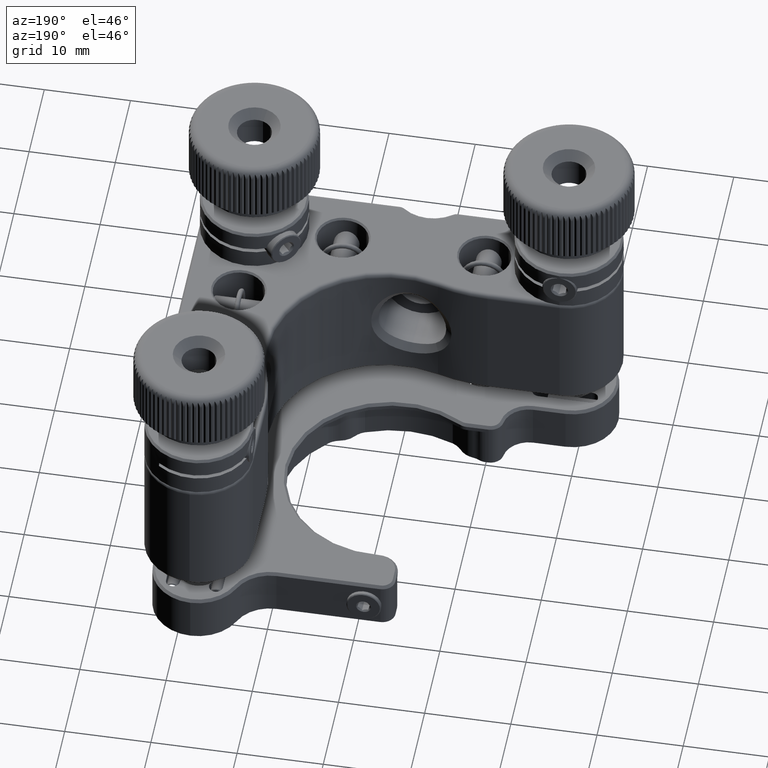
[diagram: clean part render]
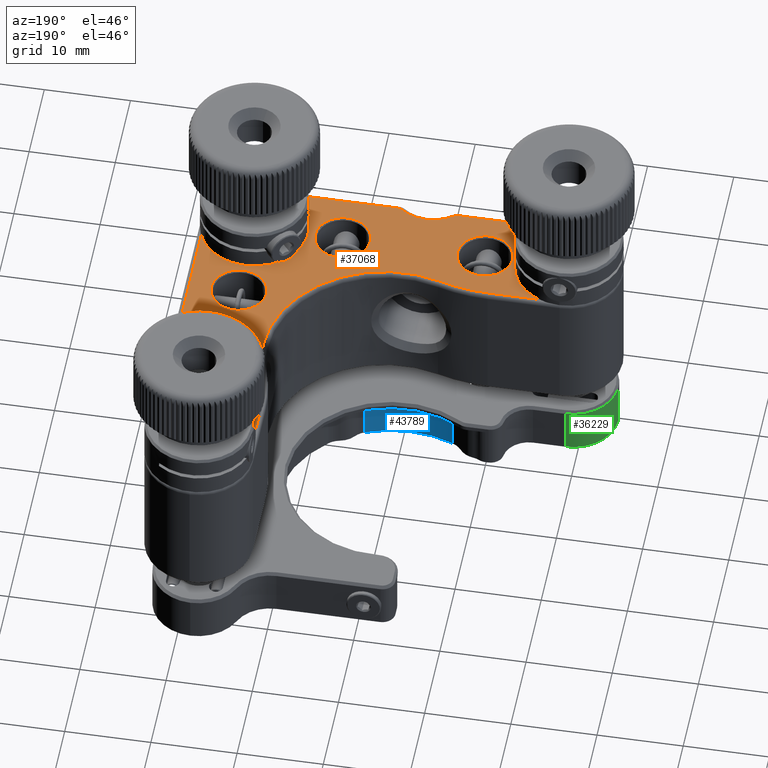
[diagram: same view with three faces highlighted in distinct colors, each labeled with its STEP entity id]
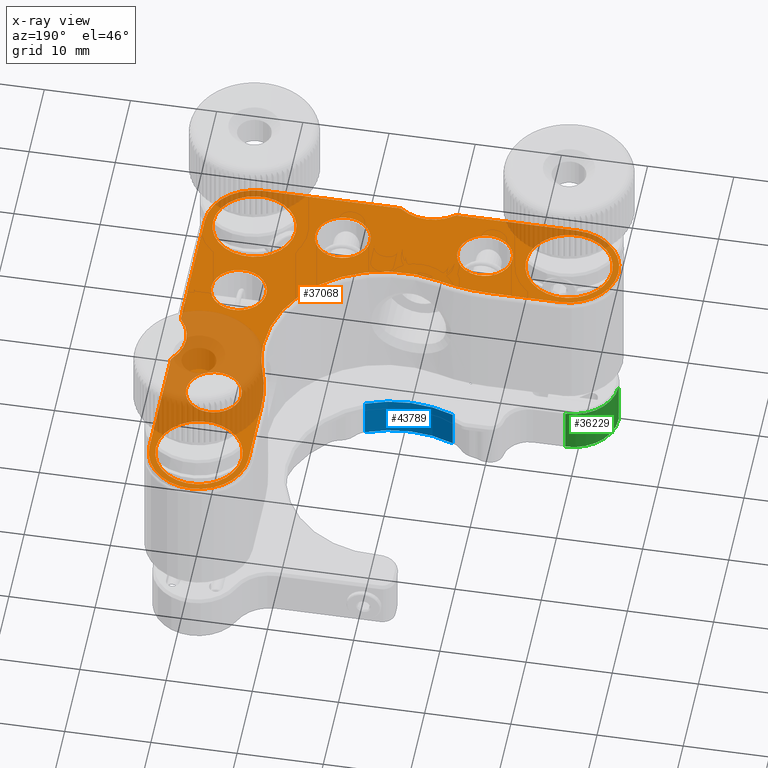
[diagram: x-ray of the same camera — body ghosted, the three highlighted faces saturated]
A machine part, auxiliary view with three faces highlighted in distinct colors.
The next image is the same camera in x-ray (body ghosted, the three faces saturated) — at least one of them is partly hidden behind the body in this view.
Their STEP definitions:

[orange] entity #37068 — the highlighted planar face has unit normal (-0, 0, 1).
#78 = CARTESIAN_POINT ( 'NONE',  ( 18.25000000000001066, 8.500000000000000000, 7.500000000000000000 ) ) ;
#91 = DIRECTION ( 'NONE',  ( 0.000000000000000000, -0.000000000000000000, -1.000000000000000000 ) ) ;
#131 = EDGE_CURVE ( 'NONE', #32321, #9625, #15367, .T. ) ;
#171 = AXIS2_PLACEMENT_3D ( 'NONE', #36932, #6768, #36409 ) ;
#306 = VERTEX_POINT ( 'NONE', #12702 ) ;
#331 = ORIENTED_EDGE ( 'NONE', *, *, #15257, .T. ) ;
#403 = CARTESIAN_POINT ( 'NONE',  ( 23.50000000000000000, -2.476388603226838292, 7.500000000000000000 ) ) ;
#641 = CARTESIAN_POINT ( 'NONE',  ( -5.299999999999991829, -18.25000000000001776, 7.500000000000000000 ) ) ;
#878 = EDGE_CURVE ( 'NONE', #7881, #6268, #5183, .T. ) ;
#1000 = CIRCLE ( 'NONE', #8821, 3.200000000000001510 ) ;
#1149 = DIRECTION ( 'NONE',  ( 0.000000000000000000, -0.000000000000000000, -1.000000000000000000 ) ) ;
#1152 = DIRECTION ( 'NONE',  ( -1.416100796715761110E-16, 1.000000000000000000, -0.000000000000000000 ) ) ;
#1177 = DIRECTION ( 'NONE',  ( -0.000000000000000000, 0.000000000000000000, 1.000000000000000000 ) ) ;
#1278 = CARTESIAN_POINT ( 'NONE',  ( 13.25000000000000888, 18.25000000000000355, 7.500000000000000000 ) ) ;
#1441 = VERTEX_POINT ( 'NONE', #641 ) ;
#1521 = EDGE_CURVE ( 'NONE', #12679, #7881, #40046, .T. ) ;
#1590 = EDGE_CURVE ( 'NONE', #45311, #10472, #25233, .T. ) ;
#1593 = ORIENTED_EDGE ( 'NONE', *, *, #42624, .T. ) ;
#1631 = DIRECTION ( 'NONE',  ( 0.000000000000000000, 0.000000000000000000, 1.000000000000000000 ) ) ;
#1799 = VERTEX_POINT ( 'NONE', #41060 ) ;
#2157 = EDGE_CURVE ( 'NONE', #47420, #26948, #4501, .T. ) ;
#2624 = EDGE_LOOP ( 'NONE', ( #3885, #26534 ) ) ;
#3018 = VECTOR ( 'NONE', #15539, 1000.000000000000000 ) ;
#3175 = CARTESIAN_POINT ( 'NONE',  ( -18.24999999999999645, -18.24999999999999645, 7.500000000000000000 ) ) ;
#3178 = CARTESIAN_POINT ( 'NONE',  ( 18.25000000000000000, -23.99999999999999645, 7.500000000000000000 ) ) ;
#3519 = CIRCLE ( 'NONE', #35689, 0.5000000000000004441 ) ;
#3571 = ORIENTED_EDGE ( 'NONE', *, *, #51720, .T. ) ;
#3885 = ORIENTED_EDGE ( 'NONE', *, *, #50871, .F. ) ;
#4310 = DIRECTION ( 'NONE',  ( 0.000000000000000000, -0.000000000000000000, -1.000000000000000000 ) ) ;
#4501 = CIRCLE ( 'NONE', #44472, 3.200000000000001510 ) ;
#4603 = CIRCLE ( 'NONE', #53164, 19.50000000000000355 ) ;
#4725 = CARTESIAN_POINT ( 'NONE',  ( 0.000000000000000000, 0.000000000000000000, 7.500000000000000000 ) ) ;
#4828 = VERTEX_POINT ( 'NONE', #45298 ) ;
#4836 = AXIS2_PLACEMENT_3D ( 'NONE', #18236, #13051, #37798 ) ;
#4897 = CARTESIAN_POINT ( 'NONE',  ( 21.44999999999999574, 8.500000000000000000, 7.500000000000000000 ) ) ;
#5183 = CIRCLE ( 'NONE', #38192, 19.50000000000000000 ) ;
#5848 = DIRECTION ( 'NONE',  ( -0.000000000000000000, 0.000000000000000000, 1.000000000000000000 ) ) ;
#6023 = CARTESIAN_POINT ( 'NONE',  ( 14.00000000000000000, 0.000000000000000000, 7.500000000000000000 ) ) ;
#6268 = VERTEX_POINT ( 'NONE', #14534 ) ;
#6368 = EDGE_CURVE ( 'NONE', #22522, #9412, #23170, .T. ) ;
#6477 = FACE_BOUND ( 'NONE', #33341, .T. ) ;
#6768 = DIRECTION ( 'NONE',  ( 0.000000000000000000, -0.000000000000000000, -1.000000000000000000 ) ) ;
#6819 = CARTESIAN_POINT ( 'NONE',  ( 0.000000000000000000, 0.000000000000000000, 7.500000000000000000 ) ) ;
#6984 = DIRECTION ( 'NONE',  ( 1.000000000000000000, 0.000000000000000000, 0.000000000000000000 ) ) ;
#7080 = DIRECTION ( 'NONE',  ( 0.000000000000000000, -0.000000000000000000, -1.000000000000000000 ) ) ;
#7228 = EDGE_LOOP ( 'NONE', ( #8345, #36060 ) ) ;
#7286 = PLANE ( 'NONE',  #9228 ) ;
#7322 = DIRECTION ( 'NONE',  ( 1.000000000000000000, 0.000000000000000000, 0.000000000000000000 ) ) ;
#7452 = AXIS2_PLACEMENT_3D ( 'NONE', #78, #10687, #14778 ) ;
#7881 = VERTEX_POINT ( 'NONE', #49869 ) ;
#7909 = EDGE_LOOP ( 'NONE', ( #19760, #42677, #331, #32336, #41967, #39771, #18250, #22889, #25054, #12168, #23214, #11602, #35820, #12856, #32691, #14387, #3571, #26842, #52435, #1593, #14965 ) ) ;
#8096 = VERTEX_POINT ( 'NONE', #18022 ) ;
#8267 = DIRECTION ( 'NONE',  ( 1.000000000000000000, 0.000000000000000000, 0.000000000000000000 ) ) ;
#8345 = ORIENTED_EDGE ( 'NONE', *, *, #52900, .T. ) ;
#8439 = VERTEX_POINT ( 'NONE', #14152 ) ;
#8539 = CIRCLE ( 'NONE', #25060, 0.5000000000000004441 ) ;
#8740 = VERTEX_POINT ( 'NONE', #18439 ) ;
#8821 = AXIS2_PLACEMENT_3D ( 'NONE', #30869, #51817, #39001 ) ;
#8878 = CARTESIAN_POINT ( 'NONE',  ( 18.25000000000000355, -18.24999999999999289, 7.500000000000000000 ) ) ;
#9075 = EDGE_CURVE ( 'NONE', #32429, #44240, #3519, .T. ) ;
#9228 = AXIS2_PLACEMENT_3D ( 'NONE', #20610, #11114, #32081 ) ;
#9359 = DIRECTION ( 'NONE',  ( 1.000000000000000000, 0.000000000000000000, 0.000000000000000000 ) ) ;
#9412 = VERTEX_POINT ( 'NONE', #53664 ) ;
#9625 = VERTEX_POINT ( 'NONE', #31065 ) ;
#9961 = DIRECTION ( 'NONE',  ( 1.000000000000000000, 0.000000000000000000, 0.000000000000000000 ) ) ;
#10036 = LINE ( 'NONE', #22839, #44852 ) ;
#10138 = VERTEX_POINT ( 'NONE', #53797 ) ;
#10155 = DIRECTION ( 'NONE',  ( 1.000000000000000000, 0.000000000000000000, 0.000000000000000000 ) ) ;
#10332 = VERTEX_POINT ( 'NONE', #42343 ) ;
#10362 = CARTESIAN_POINT ( 'NONE',  ( 2.476388603226833407, -23.49999999999999645, 7.500000000000000000 ) ) ;
#10472 = VERTEX_POINT ( 'NONE', #18384 ) ;
#10575 = FACE_BOUND ( 'NONE', #24632, .T. ) ;
#10580 = AXIS2_PLACEMENT_3D ( 'NONE', #26249, #17776, #9359 ) ;
#10687 = DIRECTION ( 'NONE',  ( 0.000000000000000000, -0.000000000000000000, -1.000000000000000000 ) ) ;
#10793 = EDGE_CURVE ( 'NONE', #44877, #1799, #38725, .T. ) ;
#10947 = AXIS2_PLACEMENT_3D ( 'NONE', #18044, #1149, #33821 ) ;
#11004 = DIRECTION ( 'NONE',  ( 1.000000000000000000, -0.000000000000000000, 0.000000000000000000 ) ) ;
#11114 = DIRECTION ( 'NONE',  ( -0.000000000000000000, 0.000000000000000000, 1.000000000000000000 ) ) ;
#11602 = ORIENTED_EDGE ( 'NONE', *, *, #9075, .T. ) ;
#11749 = CARTESIAN_POINT ( 'NONE',  ( 23.99999999999999645, 18.25000000000000355, 7.500000000000000000 ) ) ;
#11782 = EDGE_CURVE ( 'NONE', #26948, #47420, #22290, .T. ) ;
#12168 = ORIENTED_EDGE ( 'NONE', *, *, #37287, .T. ) ;
#12396 = CARTESIAN_POINT ( 'NONE',  ( 32.00000000000000000, 9.912113800799506436, 7.500000000000000000 ) ) ;
#12518 = CARTESIAN_POINT ( 'NONE',  ( 18.25000000000000000, -23.99999999999999645, 7.500000000000000000 ) ) ;
#12592 = AXIS2_PLACEMENT_3D ( 'NONE', #32223, #45781, #49075 ) ;
#12651 = CARTESIAN_POINT ( 'NONE',  ( -23.24999999999999289, -18.24999999999999645, 7.500000000000000000 ) ) ;
#12679 = VERTEX_POINT ( 'NONE', #6023 ) ;
#12702 = CARTESIAN_POINT ( 'NONE',  ( 24.00000000000000000, 4.276388603226818574, 7.500000000000000000 ) ) ;
#12856 = ORIENTED_EDGE ( 'NONE', *, *, #33709, .T. ) ;
#12934 = CARTESIAN_POINT ( 'NONE',  ( 8.000000000000003553, -18.25000000000001066, 7.500000000000000000 ) ) ;
#13051 = DIRECTION ( 'NONE',  ( 0.000000000000000000, -0.000000000000000000, -1.000000000000000000 ) ) ;
#13460 = CARTESIAN_POINT ( 'NONE',  ( 18.25000000000000711, 18.25000000000000355, 7.500000000000000000 ) ) ;
#13500 = VECTOR ( 'NONE', #11004, 1000.000000000000000 ) ;
#13513 = DIRECTION ( 'NONE',  ( 1.000000000000000000, 0.000000000000000000, 0.000000000000000000 ) ) ;
#14010 = CIRCLE ( 'NONE', #27939, 0.5000000000000000000 ) ;
#14152 = CARTESIAN_POINT ( 'NONE',  ( 2.160838266476662994, -23.88785046728971651, 7.500000000000000000 ) ) ;
#14387 = ORIENTED_EDGE ( 'NONE', *, *, #23717, .T. ) ;
#14534 = CARTESIAN_POINT ( 'NONE',  ( -9.912113800799515317, -12.50000000000000000, 7.500000000000000000 ) ) ;
#14613 = ORIENTED_EDGE ( 'NONE', *, *, #19150, .T. ) ;
#14664 = DIRECTION ( 'NONE',  ( 1.000000000000000000, 0.000000000000000000, 0.000000000000000000 ) ) ;
#14778 = DIRECTION ( 'NONE',  ( 1.000000000000000000, 0.000000000000000000, 0.000000000000000000 ) ) ;
#14787 = CIRCLE ( 'NONE', #35650, 3.199999999999987743 ) ;
#14888 = ORIENTED_EDGE ( 'NONE', *, *, #42819, .T. ) ;
#14965 = ORIENTED_EDGE ( 'NONE', *, *, #1521, .T. ) ;
#14967 = CARTESIAN_POINT ( 'NONE',  ( 18.25000000000001066, 8.500000000000000000, 7.500000000000000000 ) ) ;
#15257 = EDGE_CURVE ( 'NONE', #26297, #32321, #34024, .T. ) ;
#15367 = CIRCLE ( 'NONE', #24040, 5.750000000000000000 ) ;
#15539 = DIRECTION ( 'NONE',  ( -1.000000000000000000, -9.471423015207876716E-17, -0.000000000000000000 ) ) ;
#15741 = EDGE_CURVE ( 'NONE', #45736, #26737, #32371, .T. ) ;
#15845 = CARTESIAN_POINT ( 'NONE',  ( -23.99999999999999645, -18.24999999999999289, 7.500000000000000000 ) ) ;
#15848 = AXIS2_PLACEMENT_3D ( 'NONE', #3175, #40960, #6984 ) ;
#16178 = CIRCLE ( 'NONE', #25749, 5.749999999999998224 ) ;
#16268 = CARTESIAN_POINT ( 'NONE',  ( -18.24999999999999645, -18.24999999999999645, 7.500000000000000000 ) ) ;
#16408 = VERTEX_POINT ( 'NONE', #41976 ) ;
#16457 = EDGE_CURVE ( 'NONE', #10332, #32429, #26223, .T. ) ;
#16530 = DIRECTION ( 'NONE',  ( 1.000000000000000000, 0.000000000000000000, 0.000000000000000000 ) ) ;
#16596 = AXIS2_PLACEMENT_3D ( 'NONE', #4725, #91, #8267 ) ;
#16909 = CARTESIAN_POINT ( 'NONE',  ( 24.00000000000000000, -2.476388603226839180, 7.500000000000000000 ) ) ;
#17036 = AXIS2_PLACEMENT_3D ( 'NONE', #35212, #43107, #18343 ) ;
#17119 = EDGE_CURVE ( 'NONE', #1799, #44877, #28851, .T. ) ;
#17776 = DIRECTION ( 'NONE',  ( -0.000000000000000000, 0.000000000000000000, 1.000000000000000000 ) ) ;
#18022 = CARTESIAN_POINT ( 'NONE',  ( 13.37313432835820848, 4.142375916752031983, 7.500000000000000000 ) ) ;
#18044 = CARTESIAN_POINT ( 'NONE',  ( 8.000000000000003553, -18.25000000000001066, 7.500000000000000000 ) ) ;
#18217 = DIRECTION ( 'NONE',  ( 1.000000000000000000, -0.000000000000000000, 0.000000000000000000 ) ) ;
#18233 = DIRECTION ( 'NONE',  ( 1.000000000000000000, 0.000000000000000000, 0.000000000000000000 ) ) ;
#18236 = CARTESIAN_POINT ( 'NONE',  ( -8.499999999999992895, -18.25000000000001776, 7.500000000000000000 ) ) ;
#18250 = ORIENTED_EDGE ( 'NONE', *, *, #52007, .T. ) ;
#18280 = AXIS2_PLACEMENT_3D ( 'NONE', #50466, #30064, #20534 ) ;
#18293 = EDGE_CURVE ( 'NONE', #8439, #4828, #14010, .T. ) ;
#18343 = DIRECTION ( 'NONE',  ( 1.000000000000000000, 0.000000000000000000, 0.000000000000000000 ) ) ;
#18384 = CARTESIAN_POINT ( 'NONE',  ( 23.05000000000000426, -18.24999999999999645, 7.500000000000000000 ) ) ;
#18439 = CARTESIAN_POINT ( 'NONE',  ( 23.25000000000000355, 18.25000000000000355, 7.500000000000000000 ) ) ;
#19150 = EDGE_CURVE ( 'NONE', #1441, #46695, #1000, .T. ) ;
#19642 = ORIENTED_EDGE ( 'NONE', *, *, #11782, .T. ) ;
#19697 = AXIS2_PLACEMENT_3D ( 'NONE', #27234, #38628, #43799 ) ;
#19760 = ORIENTED_EDGE ( 'NONE', *, *, #878, .T. ) ;
#20500 = EDGE_CURVE ( 'NONE', #10138, #8096, #4603, .T. ) ;
#20534 = DIRECTION ( 'NONE',  ( 1.000000000000000000, 0.000000000000000000, 0.000000000000000000 ) ) ;
#20610 = CARTESIAN_POINT ( 'NONE',  ( 0.000000000000000000, 0.000000000000000000, 7.500000000000000000 ) ) ;
#21006 = AXIS2_PLACEMENT_3D ( 'NONE', #6819, #7080, #53616 ) ;
#21268 = AXIS2_PLACEMENT_3D ( 'NONE', #13460, #5848, #26279 ) ;
#21410 = DIRECTION ( 'NONE',  ( 0.000000000000000000, -0.000000000000000000, -1.000000000000000000 ) ) ;
#21458 = DIRECTION ( 'NONE',  ( 1.000000000000000000, 0.000000000000000000, 0.000000000000000000 ) ) ;
#22270 = CARTESIAN_POINT ( 'NONE',  ( -11.69999999999999574, -18.25000000000001776, 7.500000000000000000 ) ) ;
#22290 = CIRCLE ( 'NONE', #32686, 3.200000000000001510 ) ;
#22522 = VERTEX_POINT ( 'NONE', #47714 ) ;
#22789 = EDGE_CURVE ( 'NONE', #306, #34482, #49034, .T. ) ;
#22839 = CARTESIAN_POINT ( 'NONE',  ( -4.276388603226822127, -23.99999999999999645, 7.500000000000000000 ) ) ;
#22889 = ORIENTED_EDGE ( 'NONE', *, *, #18293, .T. ) ;
#23108 = FACE_BOUND ( 'NONE', #53380, .T. ) ;
#23170 = CIRCLE ( 'NONE', #17036, 0.5000000000000000000 ) ;
#23214 = ORIENTED_EDGE ( 'NONE', *, *, #16457, .T. ) ;
#23307 = CARTESIAN_POINT ( 'NONE',  ( 18.25000000000001066, -8.000000000000000000, 7.500000000000000000 ) ) ;
#23420 = CARTESIAN_POINT ( 'NONE',  ( 4.800000000000015810, -18.25000000000001066, 7.500000000000000000 ) ) ;
#23421 = VERTEX_POINT ( 'NONE', #35608 ) ;
#23671 = CIRCLE ( 'NONE', #171, 4.999999999999997335 ) ;
#23717 = EDGE_CURVE ( 'NONE', #34482, #23421, #35323, .T. ) ;
#23792 = EDGE_CURVE ( 'NONE', #44240, #46605, #53586, .T. ) ;
#23954 = EDGE_CURVE ( 'NONE', #45412, #8740, #24013, .T. ) ;
#24013 = CIRCLE ( 'NONE', #42253, 4.999999999999997335 ) ;
#24040 = AXIS2_PLACEMENT_3D ( 'NONE', #16268, #40483, #32880 ) ;
#24177 = FACE_BOUND ( 'NONE', #2624, .T. ) ;
#24496 = CARTESIAN_POINT ( 'NONE',  ( -13.24999999999999822, -18.24999999999999645, 7.500000000000000000 ) ) ;
#24632 = EDGE_LOOP ( 'NONE', ( #14888, #25018 ) ) ;
#25018 = ORIENTED_EDGE ( 'NONE', *, *, #15741, .T. ) ;
#25054 = ORIENTED_EDGE ( 'NONE', *, *, #46041, .T. ) ;
#25060 = AXIS2_PLACEMENT_3D ( 'NONE', #37921, #1177, #41721 ) ;
#25101 = VERTEX_POINT ( 'NONE', #23420 ) ;
#25233 = CIRCLE ( 'NONE', #18280, 4.799999999999998934 ) ;
#25749 = AXIS2_PLACEMENT_3D ( 'NONE', #8878, #42080, #13513 ) ;
#26076 = CARTESIAN_POINT ( 'NONE',  ( 13.45000000000000639, -18.24999999999999645, 7.500000000000000000 ) ) ;
#26223 = LINE ( 'NONE', #51526, #39348 ) ;
#26249 = CARTESIAN_POINT ( 'NONE',  ( -18.24999999999999645, -18.25000000000000355, 7.500000000000000000 ) ) ;
#26279 = DIRECTION ( 'NONE',  ( 1.000000000000000000, 0.000000000000000000, 0.000000000000000000 ) ) ;
#26297 = VERTEX_POINT ( 'NONE', #36271 ) ;
#26534 = ORIENTED_EDGE ( 'NONE', *, *, #1590, .F. ) ;
#26737 = VERTEX_POINT ( 'NONE', #24496 ) ;
#26842 = ORIENTED_EDGE ( 'NONE', *, *, #43734, .T. ) ;
#26948 = VERTEX_POINT ( 'NONE', #45689 ) ;
#27205 = FACE_BOUND ( 'NONE', #7228, .T. ) ;
#27234 = CARTESIAN_POINT ( 'NONE',  ( 18.24999999999999289, 18.25000000000000355, 7.500000000000000000 ) ) ;
#27657 = DIRECTION ( 'NONE',  ( 1.000000000000000000, 0.000000000000000000, 0.000000000000000000 ) ) ;
#27939 = AXIS2_PLACEMENT_3D ( 'NONE', #10362, #34602, #47366 ) ;
#27998 = EDGE_LOOP ( 'NONE', ( #38117, #19642 ) ) ;
#28113 = CARTESIAN_POINT ( 'NONE',  ( 12.50000000000000533, 18.25000000000000000, 7.500000000000000000 ) ) ;
#28134 = EDGE_CURVE ( 'NONE', #6268, #26297, #45163, .T. ) ;
#28296 = CARTESIAN_POINT ( 'NONE',  ( 27.65000000000000568, 0.8999999999999910294, 7.500000000000000000 ) ) ;
#28337 = CIRCLE ( 'NONE', #4836, 3.200000000000001510 ) ;
#28382 = DIRECTION ( 'NONE',  ( -1.416100796715761110E-16, 1.000000000000000000, -0.000000000000000000 ) ) ;
#28851 = CIRCLE ( 'NONE', #47082, 3.199999999999987743 ) ;
#29029 = DIRECTION ( 'NONE',  ( -0.000000000000000000, 0.000000000000000000, 1.000000000000000000 ) ) ;
#29477 = LINE ( 'NONE', #45223, #36740 ) ;
#29619 = EDGE_CURVE ( 'NONE', #46695, #1441, #28337, .T. ) ;
#30064 = DIRECTION ( 'NONE',  ( 0.000000000000000000, 0.000000000000000000, 1.000000000000000000 ) ) ;
#30488 = EDGE_CURVE ( 'NONE', #25101, #16408, #34419, .T. ) ;
#30677 = CARTESIAN_POINT ( 'NONE',  ( 18.25000000000000711, 18.25000000000000355, 7.500000000000000000 ) ) ;
#30869 = CARTESIAN_POINT ( 'NONE',  ( -8.499999999999992895, -18.25000000000001776, 7.500000000000000000 ) ) ;
#30905 = VECTOR ( 'NONE', #28382, 1000.000000000000000 ) ;
#31065 = CARTESIAN_POINT ( 'NONE',  ( -18.24999999999999645, -23.99999999999999645, 7.500000000000000000 ) ) ;
#31112 = ORIENTED_EDGE ( 'NONE', *, *, #29619, .T. ) ;
#31209 = DIRECTION ( 'NONE',  ( 0.000000000000000000, -0.000000000000000000, -1.000000000000000000 ) ) ;
#31538 = DIRECTION ( 'NONE',  ( -0.000000000000000000, 0.000000000000000000, 1.000000000000000000 ) ) ;
#31574 = DIRECTION ( 'NONE',  ( 1.000000000000000000, 0.000000000000000000, 0.000000000000000000 ) ) ;
#31882 = AXIS2_PLACEMENT_3D ( 'NONE', #28296, #40784, #31574 ) ;
#32081 = DIRECTION ( 'NONE',  ( 1.000000000000000000, 0.000000000000000000, 0.000000000000000000 ) ) ;
#32223 = CARTESIAN_POINT ( 'NONE',  ( -0.8999999999999939160, -27.65000000000000213, 7.500000000000000000 ) ) ;
#32321 = VERTEX_POINT ( 'NONE', #15845 ) ;
#32336 = ORIENTED_EDGE ( 'NONE', *, *, #131, .T. ) ;
#32344 = ORIENTED_EDGE ( 'NONE', *, *, #17119, .T. ) ;
#32371 = CIRCLE ( 'NONE', #15848, 4.999999999999997335 ) ;
#32429 = VERTEX_POINT ( 'NONE', #16909 ) ;
#32554 = DIRECTION ( 'NONE',  ( 1.000000000000000000, 0.000000000000000000, 0.000000000000000000 ) ) ;
#32686 = AXIS2_PLACEMENT_3D ( 'NONE', #23307, #31209, #27657 ) ;
#32691 = ORIENTED_EDGE ( 'NONE', *, *, #22789, .T. ) ;
#32880 = DIRECTION ( 'NONE',  ( 1.000000000000000000, 0.000000000000000000, 0.000000000000000000 ) ) ;
#33081 = DIRECTION ( 'NONE',  ( 0.000000000000000000, -0.000000000000000000, -1.000000000000000000 ) ) ;
#33341 = EDGE_LOOP ( 'NONE', ( #51046, #32344 ) ) ;
#33709 = EDGE_CURVE ( 'NONE', #46605, #306, #8539, .T. ) ;
#33821 = DIRECTION ( 'NONE',  ( 1.000000000000000000, 0.000000000000000000, 0.000000000000000000 ) ) ;
#34024 = CIRCLE ( 'NONE', #10580, 5.750000000000000000 ) ;
#34419 = CIRCLE ( 'NONE', #10947, 3.199999999999987743 ) ;
#34482 = VERTEX_POINT ( 'NONE', #37362 ) ;
#34602 = DIRECTION ( 'NONE',  ( -0.000000000000000000, 0.000000000000000000, 1.000000000000000000 ) ) ;
#35212 = CARTESIAN_POINT ( 'NONE',  ( -4.276388603226821239, -23.49999999999999645, 7.500000000000000000 ) ) ;
#35323 = CIRCLE ( 'NONE', #19697, 5.750000000000001776 ) ;
#35608 = CARTESIAN_POINT ( 'NONE',  ( 18.25000000000000711, 24.00000000000000355, 7.500000000000000000 ) ) ;
#35650 = AXIS2_PLACEMENT_3D ( 'NONE', #12934, #33081, #32554 ) ;
#35689 = AXIS2_PLACEMENT_3D ( 'NONE', #403, #46689, #10155 ) ;
#35755 = CARTESIAN_POINT ( 'NONE',  ( 23.88785046728972006, -2.160838266476666547, 7.500000000000000000 ) ) ;
#35777 = CIRCLE ( 'NONE', #21006, 14.00000000000000000 ) ;
#35820 = ORIENTED_EDGE ( 'NONE', *, *, #23792, .T. ) ;
#36060 = ORIENTED_EDGE ( 'NONE', *, *, #30488, .T. ) ;
#36073 = CIRCLE ( 'NONE', #21268, 5.750000000000001776 ) ;
#36271 = CARTESIAN_POINT ( 'NONE',  ( -18.24999999999999645, -12.50000000000000178, 7.500000000000000000 ) ) ;
#36294 = VERTEX_POINT ( 'NONE', #28113 ) ;
#36409 = DIRECTION ( 'NONE',  ( 1.000000000000000000, 0.000000000000000000, 0.000000000000000000 ) ) ;
#36740 = VECTOR ( 'NONE', #46032, 1000.000000000000000 ) ;
#36932 = CARTESIAN_POINT ( 'NONE',  ( -18.24999999999999645, -18.24999999999999645, 7.500000000000000000 ) ) ;
#37068 = ADVANCED_FACE ( 'NONE', ( #10575, #52493, #27205, #43769, #6477, #23108, #39688, #24177 ), #7286, .T. ) ;
#37202 = CARTESIAN_POINT ( 'NONE',  ( 18.25000000000001066, -8.000000000000000000, 7.500000000000000000 ) ) ;
#37287 = EDGE_CURVE ( 'NONE', #46923, #10332, #16178, .T. ) ;
#37362 = CARTESIAN_POINT ( 'NONE',  ( 23.99999999999999645, 18.25000000000000355, 7.500000000000000000 ) ) ;
#37798 = DIRECTION ( 'NONE',  ( 1.000000000000000000, 0.000000000000000000, 0.000000000000000000 ) ) ;
#37921 = CARTESIAN_POINT ( 'NONE',  ( 23.50000000000000000, 4.276388603226819463, 7.500000000000000000 ) ) ;
#38117 = ORIENTED_EDGE ( 'NONE', *, *, #2157, .T. ) ;
#38192 = AXIS2_PLACEMENT_3D ( 'NONE', #47599, #31538, #14664 ) ;
#38628 = DIRECTION ( 'NONE',  ( -0.000000000000000000, 0.000000000000000000, 1.000000000000000000 ) ) ;
#38725 = CIRCLE ( 'NONE', #7452, 3.199999999999987743 ) ;
#38901 = CARTESIAN_POINT ( 'NONE',  ( 18.25000000000000711, -18.24999999999999645, 7.500000000000000000 ) ) ;
#39001 = DIRECTION ( 'NONE',  ( 1.000000000000000000, 0.000000000000000000, 0.000000000000000000 ) ) ;
#39348 = VECTOR ( 'NONE', #1152, 1000.000000000000000 ) ;
#39446 = DIRECTION ( 'NONE',  ( 0.000000000000000000, -0.000000000000000000, -1.000000000000000000 ) ) ;
#39688 = FACE_OUTER_BOUND ( 'NONE', #7909, .T. ) ;
#39771 = ORIENTED_EDGE ( 'NONE', *, *, #6368, .T. ) ;
#40046 = CIRCLE ( 'NONE', #16596, 14.00000000000000000 ) ;
#40483 = DIRECTION ( 'NONE',  ( -0.000000000000000000, 0.000000000000000000, 1.000000000000000000 ) ) ;
#40784 = DIRECTION ( 'NONE',  ( 0.000000000000000000, -0.000000000000000000, -1.000000000000000000 ) ) ;
#40960 = DIRECTION ( 'NONE',  ( 0.000000000000000000, -0.000000000000000000, -1.000000000000000000 ) ) ;
#41060 = CARTESIAN_POINT ( 'NONE',  ( 15.05000000000002203, 8.500000000000000000, 7.500000000000000000 ) ) ;
#41362 = EDGE_CURVE ( 'NONE', #8740, #45412, #48755, .T. ) ;
#41445 = CARTESIAN_POINT ( 'NONE',  ( 21.45000000000000995, -8.000000000000000000, 7.500000000000000000 ) ) ;
#41721 = DIRECTION ( 'NONE',  ( 1.000000000000000000, 0.000000000000000000, 0.000000000000000000 ) ) ;
#41967 = ORIENTED_EDGE ( 'NONE', *, *, #49060, .T. ) ;
#41976 = CARTESIAN_POINT ( 'NONE',  ( 11.19999999999999041, -18.25000000000001066, 7.500000000000000000 ) ) ;
#42080 = DIRECTION ( 'NONE',  ( -0.000000000000000000, 0.000000000000000000, 1.000000000000000000 ) ) ;
#42108 = CARTESIAN_POINT ( 'NONE',  ( 23.88785046728972006, 3.960838266476649494, 7.500000000000000000 ) ) ;
#42118 = CARTESIAN_POINT ( 'NONE',  ( 18.25000000000000711, 18.25000000000000355, 7.500000000000000000 ) ) ;
#42253 = AXIS2_PLACEMENT_3D ( 'NONE', #42118, #4310, #21458 ) ;
#42343 = CARTESIAN_POINT ( 'NONE',  ( 24.00000000000000355, -18.24999999999999289, 7.500000000000000000 ) ) ;
#42624 = EDGE_CURVE ( 'NONE', #8096, #12679, #35777, .T. ) ;
#42677 = ORIENTED_EDGE ( 'NONE', *, *, #28134, .T. ) ;
#42819 = EDGE_CURVE ( 'NONE', #26737, #45736, #23671, .T. ) ;
#43107 = DIRECTION ( 'NONE',  ( -0.000000000000000000, 0.000000000000000000, 1.000000000000000000 ) ) ;
#43734 = EDGE_CURVE ( 'NONE', #36294, #10138, #29477, .T. ) ;
#43769 = FACE_BOUND ( 'NONE', #27998, .T. ) ;
#43799 = DIRECTION ( 'NONE',  ( 1.000000000000000000, 0.000000000000000000, 0.000000000000000000 ) ) ;
#44240 = VERTEX_POINT ( 'NONE', #35755 ) ;
#44472 = AXIS2_PLACEMENT_3D ( 'NONE', #37202, #53819, #16530 ) ;
#44852 = VECTOR ( 'NONE', #18217, 1000.000000000000000 ) ;
#44877 = VERTEX_POINT ( 'NONE', #4897 ) ;
#45085 = ORIENTED_EDGE ( 'NONE', *, *, #23954, .T. ) ;
#45163 = LINE ( 'NONE', #45431, #3018 ) ;
#45223 = CARTESIAN_POINT ( 'NONE',  ( 12.50000000000000533, 9.912113800799499330, 7.500000000000000000 ) ) ;
#45298 = CARTESIAN_POINT ( 'NONE',  ( 2.476388603226832519, -23.99999999999999645, 7.500000000000000000 ) ) ;
#45311 = VERTEX_POINT ( 'NONE', #26076 ) ;
#45412 = VERTEX_POINT ( 'NONE', #1278 ) ;
#45431 = CARTESIAN_POINT ( 'NONE',  ( -18.24999999999999645, -12.50000000000000000, 7.500000000000000000 ) ) ;
#45575 = DIRECTION ( 'NONE',  ( 1.000000000000000000, 0.000000000000000000, 0.000000000000000000 ) ) ;
#45685 = AXIS2_PLACEMENT_3D ( 'NONE', #38901, #1631, #18233 ) ;
#45689 = CARTESIAN_POINT ( 'NONE',  ( 15.05000000000000782, -8.000000000000000000, 7.500000000000000000 ) ) ;
#45736 = VERTEX_POINT ( 'NONE', #12651 ) ;
#45781 = DIRECTION ( 'NONE',  ( 0.000000000000000000, -0.000000000000000000, -1.000000000000000000 ) ) ;
#46032 = DIRECTION ( 'NONE',  ( 3.788569206083147235E-16, -1.000000000000000000, 0.000000000000000000 ) ) ;
#46041 = EDGE_CURVE ( 'NONE', #4828, #46923, #53903, .T. ) ;
#46546 = ORIENTED_EDGE ( 'NONE', *, *, #41362, .T. ) ;
#46568 = CIRCLE ( 'NONE', #45685, 4.799999999999998934 ) ;
#46605 = VERTEX_POINT ( 'NONE', #42108 ) ;
#46689 = DIRECTION ( 'NONE',  ( -0.000000000000000000, 0.000000000000000000, 1.000000000000000000 ) ) ;
#46695 = VERTEX_POINT ( 'NONE', #22270 ) ;
#46923 = VERTEX_POINT ( 'NONE', #3178 ) ;
#47082 = AXIS2_PLACEMENT_3D ( 'NONE', #14967, #39446, #7322 ) ;
#47366 = DIRECTION ( 'NONE',  ( 1.000000000000000000, 0.000000000000000000, 0.000000000000000000 ) ) ;
#47420 = VERTEX_POINT ( 'NONE', #41445 ) ;
#47599 = CARTESIAN_POINT ( 'NONE',  ( -9.912113800799513541, -32.00000000000000000, 7.500000000000000000 ) ) ;
#47698 = EDGE_LOOP ( 'NONE', ( #14613, #31112 ) ) ;
#47714 = CARTESIAN_POINT ( 'NONE',  ( -4.276388603226822127, -23.99999999999999645, 7.500000000000000000 ) ) ;
#48755 = CIRCLE ( 'NONE', #52247, 4.999999999999997335 ) ;
#49034 = LINE ( 'NONE', #11749, #30905 ) ;
#49060 = EDGE_CURVE ( 'NONE', #9625, #22522, #10036, .T. ) ;
#49075 = DIRECTION ( 'NONE',  ( 1.000000000000000000, -1.430699774001489446E-15, 0.000000000000000000 ) ) ;
#49090 = CIRCLE ( 'NONE', #12592, 4.850000000000003197 ) ;
#49869 = CARTESIAN_POINT ( 'NONE',  ( -4.142375916752035536, -13.37313432835820848, 7.500000000000000000 ) ) ;
#50466 = CARTESIAN_POINT ( 'NONE',  ( 18.25000000000000711, -18.24999999999999645, 7.500000000000000000 ) ) ;
#50871 = EDGE_CURVE ( 'NONE', #10472, #45311, #46568, .T. ) ;
#51046 = ORIENTED_EDGE ( 'NONE', *, *, #10793, .T. ) ;
#51526 = CARTESIAN_POINT ( 'NONE',  ( 24.00000000000000000, -2.476388603226839624, 7.500000000000000000 ) ) ;
#51720 = EDGE_CURVE ( 'NONE', #23421, #36294, #36073, .T. ) ;
#51817 = DIRECTION ( 'NONE',  ( 0.000000000000000000, -0.000000000000000000, -1.000000000000000000 ) ) ;
#52007 = EDGE_CURVE ( 'NONE', #9412, #8439, #49090, .T. ) ;
#52247 = AXIS2_PLACEMENT_3D ( 'NONE', #30677, #21410, #9961 ) ;
#52435 = ORIENTED_EDGE ( 'NONE', *, *, #20500, .T. ) ;
#52493 = FACE_BOUND ( 'NONE', #47698, .T. ) ;
#52900 = EDGE_CURVE ( 'NONE', #16408, #25101, #14787, .T. ) ;
#53164 = AXIS2_PLACEMENT_3D ( 'NONE', #12396, #29029, #45575 ) ;
#53380 = EDGE_LOOP ( 'NONE', ( #46546, #45085 ) ) ;
#53586 = CIRCLE ( 'NONE', #31882, 4.850000000000003197 ) ;
#53616 = DIRECTION ( 'NONE',  ( 1.000000000000000000, 6.217248937900876626E-15, 0.000000000000000000 ) ) ;
#53664 = CARTESIAN_POINT ( 'NONE',  ( -3.960838266476649938, -23.88785046728971651, 7.500000000000000000 ) ) ;
#53797 = CARTESIAN_POINT ( 'NONE',  ( 12.50000000000000533, 9.912113800799499330, 7.500000000000000000 ) ) ;
#53819 = DIRECTION ( 'NONE',  ( 0.000000000000000000, -0.000000000000000000, -1.000000000000000000 ) ) ;
#53903 = LINE ( 'NONE', #12518, #13500 ) ;

[blue] entity #43789 — the highlighted cylindrical surface (partial cylindrical patch) has radius 13.2 mm, axis along (-0, 0, -1).
#2052 = ORIENTED_EDGE ( 'NONE', *, *, #8247, .T. ) ;
#3297 = CARTESIAN_POINT ( 'NONE',  ( 4.193194206007137659, -11.27782299016927858, -11.99999999999999467 ) ) ;
#4370 = VERTEX_POINT ( 'NONE', #45103 ) ;
#6043 = VERTEX_POINT ( 'NONE', #24359 ) ;
#6814 = VECTOR ( 'NONE', #19893, 1000.000000000000000 ) ;
#7348 = EDGE_CURVE ( 'NONE', #15080, #6043, #7497, .T. ) ;
#7497 = LINE ( 'NONE', #36605, #45841 ) ;
#7760 = DIRECTION ( 'NONE',  ( 1.727824998607864006E-16, -4.644569017313163832E-18, 1.000000000000000000 ) ) ;
#8247 = EDGE_CURVE ( 'NONE', #40738, #4370, #28074, .T. ) ;
#10164 = DIRECTION ( 'NONE',  ( -1.727824998607864006E-16, 4.644569017313163832E-18, -1.000000000000000000 ) ) ;
#10999 = CIRCLE ( 'NONE', #47536, 13.19999999999999929 ) ;
#13927 = CYLINDRICAL_SURFACE ( 'NONE', #17629, 13.19999999999999929 ) ;
#14210 = DIRECTION ( 'NONE',  ( -1.000000000000000000, 4.353235995585737844E-16, 1.314184451497581259E-16 ) ) ;
#15080 = VERTEX_POINT ( 'NONE', #40216 ) ;
#17629 = AXIS2_PLACEMENT_3D ( 'NONE', #25928, #18544, #14210 ) ;
#18544 = DIRECTION ( 'NONE',  ( -1.727824998607864006E-16, 4.644569017313163832E-18, -1.000000000000000000 ) ) ;
#18951 = DIRECTION ( 'NONE',  ( -1.000000000000000000, 4.353235995585737844E-16, 1.314184451497581259E-16 ) ) ;
#19664 = CARTESIAN_POINT ( 'NONE',  ( 4.193194206007136771, -11.27782299016927503, -11.99999999999999467 ) ) ;
#19893 = DIRECTION ( 'NONE',  ( -1.727824998607864006E-16, 4.644569017313163832E-18, -1.000000000000000000 ) ) ;
#20569 = AXIS2_PLACEMENT_3D ( 'NONE', #43696, #39611, #18951 ) ;
#22318 = EDGE_CURVE ( 'NONE', #4370, #15080, #10999, .T. ) ;
#24359 = CARTESIAN_POINT ( 'NONE',  ( -5.993194206007106395, -11.27782299016927148, -11.99999999999999289 ) ) ;
#25928 = CARTESIAN_POINT ( 'NONE',  ( -0.8999999999999798161, 0.9000000000000087930, -11.99999999999999289 ) ) ;
#28074 = LINE ( 'NONE', #3297, #6814 ) ;
#29831 = ORIENTED_EDGE ( 'NONE', *, *, #37399, .F. ) ;
#30006 = ORIENTED_EDGE ( 'NONE', *, *, #22318, .T. ) ;
#30594 = DIRECTION ( 'NONE',  ( -1.000000000000000000, 4.353235995585737844E-16, 2.628368902995162518E-16 ) ) ;
#34494 = CIRCLE ( 'NONE', #20569, 13.19999999999999929 ) ;
#36605 = CARTESIAN_POINT ( 'NONE',  ( -5.993194206007107283, -11.27782299016927503, -11.99999999999999289 ) ) ;
#37399 = EDGE_CURVE ( 'NONE', #40738, #6043, #34494, .T. ) ;
#39611 = DIRECTION ( 'NONE',  ( -1.727824998607864006E-16, 4.644569017313163832E-18, -1.000000000000000000 ) ) ;
#39857 = ORIENTED_EDGE ( 'NONE', *, *, #7348, .T. ) ;
#40216 = CARTESIAN_POINT ( 'NONE',  ( -5.993194206007108171, -11.27782299016927503, -16.69999999999998153 ) ) ;
#40738 = VERTEX_POINT ( 'NONE', #19664 ) ;
#43696 = CARTESIAN_POINT ( 'NONE',  ( -0.8999999999999798161, 0.9000000000000087930, -11.99999999999999289 ) ) ;
#43789 = ADVANCED_FACE ( 'NONE', ( #51235 ), #13927, .F. ) ;
#45103 = CARTESIAN_POINT ( 'NONE',  ( 4.193194206007136771, -11.27782299016927858, -16.69999999999998508 ) ) ;
#45841 = VECTOR ( 'NONE', #7760, 1000.000000000000000 ) ;
#47536 = AXIS2_PLACEMENT_3D ( 'NONE', #50998, #10164, #30594 ) ;
#48687 = EDGE_LOOP ( 'NONE', ( #2052, #30006, #39857, #29831 ) ) ;
#50998 = CARTESIAN_POINT ( 'NONE',  ( -0.8999999999999807043, 0.9000000000000087930, -16.69999999999998508 ) ) ;
#51235 = FACE_OUTER_BOUND ( 'NONE', #48687, .T. ) ;

[green] entity #36229 — the highlighted cylindrical surface (partial cylindrical patch) has radius 5.25 mm, axis along (-0, 0, -1).
#22 = EDGE_CURVE ( 'NONE', #2910, #2563, #21434, .T. ) ;
#1529 = CARTESIAN_POINT ( 'NONE',  ( -23.99999999999998224, -18.24999999999997513, -11.29999999999999716 ) ) ;
#2563 = VERTEX_POINT ( 'NONE', #24901 ) ;
#2910 = VERTEX_POINT ( 'NONE', #46305 ) ;
#3213 = VERTEX_POINT ( 'NONE', #39758 ) ;
#3627 = VECTOR ( 'NONE', #25213, 1000.000000000000000 ) ;
#5887 = CARTESIAN_POINT ( 'NONE',  ( -18.74999999999998224, -18.24999999999998579, -11.29999999999999893 ) ) ;
#6403 = DIRECTION ( 'NONE',  ( -1.727824998607864006E-16, 4.644569017313163832E-18, -1.000000000000000000 ) ) ;
#6555 = DIRECTION ( 'NONE',  ( 1.727824998607864006E-16, -4.644569017313163832E-18, 1.000000000000000000 ) ) ;
#6661 = AXIS2_PLACEMENT_3D ( 'NONE', #48674, #19826, #28554 ) ;
#7652 = VECTOR ( 'NONE', #6555, 1000.000000000000000 ) ;
#7912 = ORIENTED_EDGE ( 'NONE', *, *, #10326, .F. ) ;
#7933 = DIRECTION ( 'NONE',  ( -1.727824998607864006E-16, 4.644569017313163832E-18, -1.000000000000000000 ) ) ;
#8187 = EDGE_CURVE ( 'NONE', #2910, #3213, #40018, .T. ) ;
#8192 = CARTESIAN_POINT ( 'NONE',  ( -18.74999999999998224, -18.24999999999998579, -10.99999999999999112 ) ) ;
#10326 = EDGE_CURVE ( 'NONE', #11837, #2563, #16767, .T. ) ;
#10649 = CARTESIAN_POINT ( 'NONE',  ( -18.74999999999997868, -12.99999999999998224, -10.99999999999999112 ) ) ;
#11837 = VERTEX_POINT ( 'NONE', #1529 ) ;
#16767 = LINE ( 'NONE', #21663, #3627 ) ;
#18038 = AXIS2_PLACEMENT_3D ( 'NONE', #8192, #7933, #20993 ) ;
#18401 = DIRECTION ( 'NONE',  ( -1.000000000000000000, 6.608470384673553982E-16, 3.304235192336776991E-16 ) ) ;
#19826 = DIRECTION ( 'NONE',  ( 1.727824998607864006E-16, -4.644569017313163832E-18, 1.000000000000000000 ) ) ;
#20993 = DIRECTION ( 'NONE',  ( -1.000000000000000000, 6.608470384673553982E-16, 3.304235192336776991E-16 ) ) ;
#21434 = CIRCLE ( 'NONE', #6661, 5.249999999999997335 ) ;
#21663 = CARTESIAN_POINT ( 'NONE',  ( -23.99999999999998224, -18.24999999999997513, -10.99999999999998934 ) ) ;
#24812 = CYLINDRICAL_SURFACE ( 'NONE', #18038, 5.249999999999997335 ) ;
#24901 = CARTESIAN_POINT ( 'NONE',  ( -23.99999999999998224, -18.24999999999997513, -16.69999999999997797 ) ) ;
#25093 = FACE_OUTER_BOUND ( 'NONE', #27866, .T. ) ;
#25213 = DIRECTION ( 'NONE',  ( -1.727824998607864006E-16, 4.644569017313163832E-18, -1.000000000000000000 ) ) ;
#25606 = EDGE_CURVE ( 'NONE', #11837, #3213, #33563, .T. ) ;
#27866 = EDGE_LOOP ( 'NONE', ( #7912, #43361, #43248, #36071 ) ) ;
#28554 = DIRECTION ( 'NONE',  ( -1.000000000000000000, -3.304235192336777090E-15, 0.000000000000000000 ) ) ;
#33563 = CIRCLE ( 'NONE', #43130, 5.249999999999997335 ) ;
#36071 = ORIENTED_EDGE ( 'NONE', *, *, #22, .T. ) ;
#36229 = ADVANCED_FACE ( 'NONE', ( #25093 ), #24812, .T. ) ;
#39758 = CARTESIAN_POINT ( 'NONE',  ( -18.74999999999997868, -12.99999999999998224, -11.29999999999999893 ) ) ;
#40018 = LINE ( 'NONE', #10649, #7652 ) ;
#43130 = AXIS2_PLACEMENT_3D ( 'NONE', #5887, #6403, #18401 ) ;
#43248 = ORIENTED_EDGE ( 'NONE', *, *, #8187, .F. ) ;
#43361 = ORIENTED_EDGE ( 'NONE', *, *, #25606, .T. ) ;
#46305 = CARTESIAN_POINT ( 'NONE',  ( -18.74999999999997868, -12.99999999999998224, -16.69999999999998153 ) ) ;
#48674 = CARTESIAN_POINT ( 'NONE',  ( -18.74999999999998224, -18.24999999999998579, -16.69999999999998153 ) ) ;